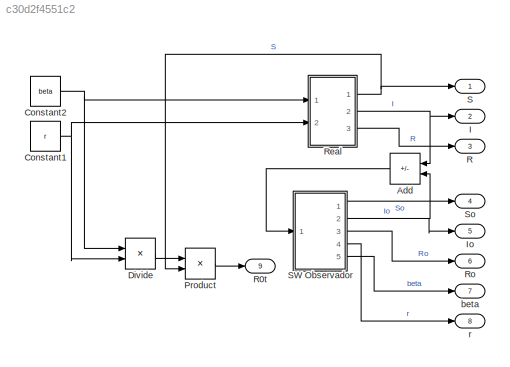
MODEL slx_c30d2f4551c2
KIND model
CONFIG AbsTol = auto
CONFIG EnableMultiTasking = off
CONFIG FixedStep = auto
CONFIG MaxStep = 1e-2
CONFIG MinStep = auto
CONFIG RelTol = 1e-3
CONFIG SampleTimeConstraint = Unconstrained
CONFIG Solver = VariableStepAuto
CONFIG SolverName = VariableStepAuto
CONFIG StartTime = 0.0
CONFIG StopTime = 100
BLOCK [Sum] Add
  IconShape = rectangular
  Inputs = +-
  NameLocation = top
  Ports = [2, 1]
BLOCK [Constant] Constant1
  Value = r
BLOCK [Constant] Constant2
  Value = beta
BLOCK [Product] Divide
  Inputs = */
  Ports = [2, 1]
BLOCK [Outport] I
  Port = 2
BLOCK [Outport] Io
  Port = 5
BLOCK [Product] Product
  Ports = [2, 1]
BLOCK [Outport] R
  Port = 3
BLOCK [Outport] R0t
  Port = 9
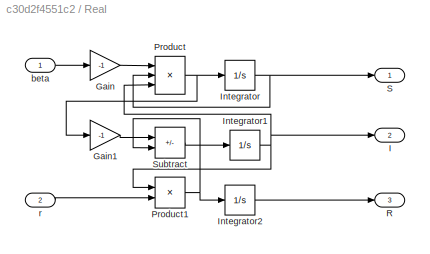
BLOCK [SubSystem] Real
  Ports = [2, 3]
  RequestExecContextInheritance = off
BLOCK [Gain] Real/Gain
  Gain = -1
BLOCK [Gain] Real/Gain1
  Gain = -1
BLOCK [Outport] Real/I
  Port = 2
BLOCK [Integrator] Real/Integrator
  InitialCondition = S0
  Ports = [1, 1]
BLOCK [Integrator] Real/Integrator1
  InitialCondition = I0
  Ports = [1, 1]
BLOCK [Integrator] Real/Integrator2
  InitialCondition = R0
  Ports = [1, 1]
BLOCK [Product] Real/Product
  Inputs = 3
  Ports = [3, 1]
BLOCK [Product] Real/Product1
  Ports = [2, 1]
BLOCK [Outport] Real/R
  Port = 3
BLOCK [Outport] Real/S
BLOCK [Sum] Real/Subtract
  IconShape = rectangular
  Inputs = +-
  Ports = [2, 1]
BLOCK [Inport] Real/beta
BLOCK [Inport] Real/r
  Port = 2
BLOCK [Outport] Ro
  Port = 6
BLOCK [Outport] S
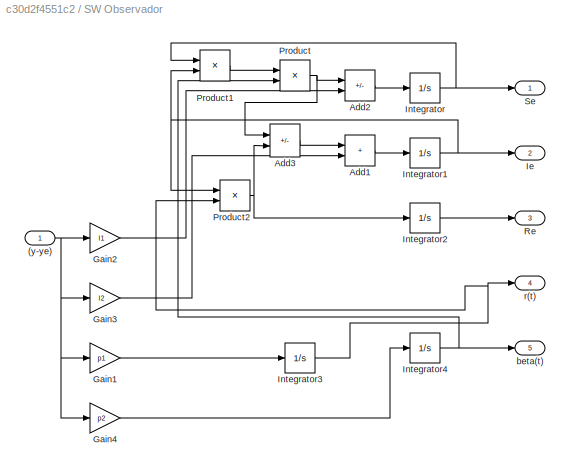
BLOCK [SubSystem] SW Observador
  Ports = [1, 5]
  RequestExecContextInheritance = off
BLOCK [Inport] SW Observador/(y-ye)
BLOCK [Sum] SW Observador/Add1
  IconShape = rectangular
  Ports = [2, 1]
BLOCK [Sum] SW Observador/Add2
  IconShape = rectangular
  Inputs = -+
  Ports = [2, 1]
BLOCK [Sum] SW Observador/Add3
  IconShape = rectangular
  Inputs = +-
  Ports = [2, 1]
BLOCK [Gain] SW Observador/Gain1
  Gain = p1
BLOCK [Gain] SW Observador/Gain2
  Gain = l1
BLOCK [Gain] SW Observador/Gain3
  Gain = l2
BLOCK [Gain] SW Observador/Gain4
  Gain = p2
BLOCK [Outport] SW Observador/Ie
  Port = 2
BLOCK [Integrator] SW Observador/Integrator
  InitialCondition = S0o
  Ports = [1, 1]
BLOCK [Integrator] SW Observador/Integrator1
  InitialCondition = I0o
  Ports = [1, 1]
BLOCK [Integrator] SW Observador/Integrator2
  InitialCondition = R0o
  Ports = [1, 1]
BLOCK [Integrator] SW Observador/Integrator3
  InitialCondition = r0
  Ports = [1, 1]
BLOCK [Integrator] SW Observador/Integrator4
  InitialCondition = beta0
  Ports = [1, 1]
BLOCK [Product] SW Observador/Product
  Ports = [2, 1]
BLOCK [Product] SW Observador/Product1
  Ports = [2, 1]
BLOCK [Product] SW Observador/Product2
  Ports = [2, 1]
BLOCK [Outport] SW Observador/Re
  Port = 3
BLOCK [Outport] SW Observador/Se
BLOCK [Outport] SW Observador/beta(t)
  Port = 5
BLOCK [Outport] SW Observador/r(t)
  Port = 4
BLOCK [Outport] So
  Port = 4
BLOCK [Outport] beta
  Port = 7
BLOCK [Outport] r
  Port = 8
LINE Add:1 -> SW Observador:1
NET Constant1:1 -> Divide:2, Real:2
NET Constant2:1 -> Divide:1, Real:1
LINE Divide:1 -> Product:1
LINE Product:1 -> R0t:1
LINE Real/Gain1:1 -> Real/Subtract:1
LINE Real/Gain:1 -> Real/Product:1
NET Real/Integrator1:1 -> Real/I:1, Real/Product1:1, Real/Product:3
LINE Real/Integrator2:1 -> Real/R:1
NET Real/Integrator:1 -> Real/Product:2, Real/S:1
NET Real/Product1:1 -> Real/Integrator2:1, Real/Subtract:2
NET Real/Product:1 -> Real/Gain1:1, Real/Integrator:1
LINE Real/Subtract:1 -> Real/Integrator1:1
LINE Real/beta:1 -> Real/Gain:1
LINE Real/r:1 -> Real/Product1:2
NET Real:1 -> Product:2, S:1
NET Real:2 -> Add:1, I:1
LINE Real:3 -> R:1
NET SW Observador/(y-ye):1 -> SW Observador/Gain1:1, SW Observador/Gain2:1, SW Observador/Gain3:1, SW Observador/Gain4:1
LINE SW Observador/Add1:1 -> SW Observador/Integrator1:1
LINE SW Observador/Add2:1 -> SW Observador/Integrator:1
LINE SW Observador/Add3:1 -> SW Observador/Add1:1
LINE SW Observador/Gain1:1 -> SW Observador/Integrator3:1
LINE SW Observador/Gain2:1 -> SW Observador/Add2:2
LINE SW Observador/Gain3:1 -> SW Observador/Add1:2
LINE SW Observador/Gain4:1 -> SW Observador/Integrator4:1
NET SW Observador/Integrator1:1 -> SW Observador/Ie:1, SW Observador/Product1:2, SW Observador/Product2:1
LINE SW Observador/Integrator2:1 -> SW Observador/Re:1
NET SW Observador/Integrator3:1 -> SW Observador/Product2:2, SW Observador/r(t):1
NET SW Observador/Integrator4:1 -> SW Observador/Product:2, SW Observador/beta(t):1
NET SW Observador/Integrator:1 -> SW Observador/Product1:1, SW Observador/Se:1
LINE SW Observador/Product1:1 -> SW Observador/Product:1
NET SW Observador/Product2:1 -> SW Observador/Add3:2, SW Observador/Integrator2:1
NET SW Observador/Product:1 -> SW Observador/Add2:1, SW Observador/Add3:1
LINE SW Observador:1 -> So:1
NET SW Observador:2 -> Add:2, Io:1
LINE SW Observador:3 -> Ro:1
LINE SW Observador:4 -> r:1
LINE SW Observador:5 -> beta:1
note: NET lines group one-source signal fan-out (src -> all destinations, sorted); 1:1 wires keep LINE
